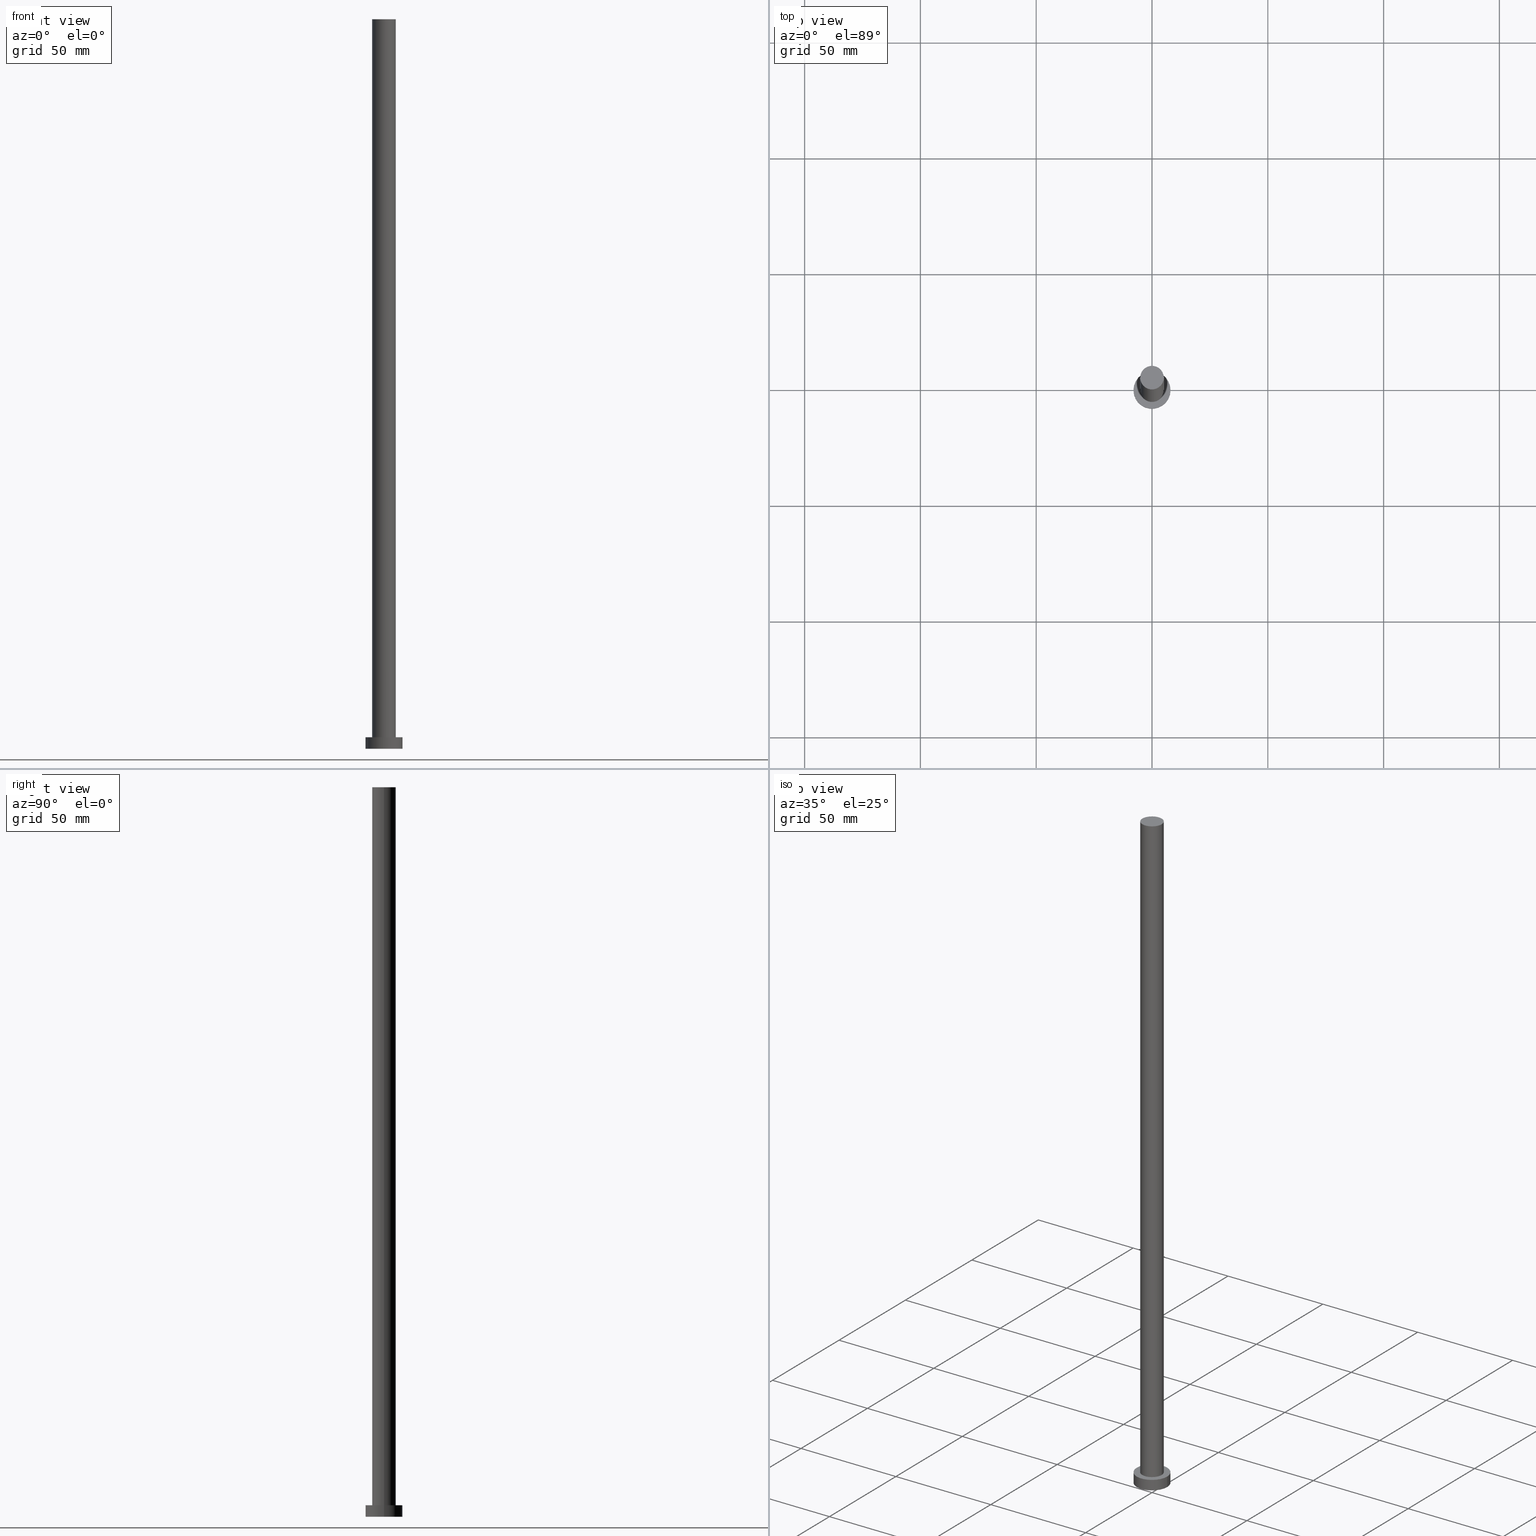
[diagram: canonical four-view strip — front | top / right | iso, engineering-drawing reading convention]
A machine part, canonical four-view strip (front | top / right | iso — engineering-drawing reading convention). The complete STEP part file that produces these views, byte-faithful:
ISO-10303-21;
HEADER;
FILE_DESCRIPTION (( 'STEP AP203' ),
    '1' );
FILE_NAME ('0a25.STEP',
    '2023-02-13T09:56:45',
    ( '' ),
    ( '' ),
    'SwSTEP 2.0',
    'SolidWorks 2019',
    '' );
FILE_SCHEMA (( 'CONFIG_CONTROL_DESIGN' ));
ENDSEC;

DATA;
#1 = APPROVAL_PERSON_ORGANIZATION ( #43, #59, #200 ) ;
#2 = PERSON_AND_ORGANIZATION_ROLE ( 'design_owner' ) ;
#3 = DATE_AND_TIME ( #164, #114 ) ;
#4 = ORIENTED_EDGE ( 'NONE', *, *, #72, .T. ) ;
#5 = ORIENTED_EDGE ( 'NONE', *, *, #136, .T. ) ;
#6 = EDGE_LOOP ( 'NONE', ( #186, #242, #219, #5 ) ) ;
#7 = CARTESIAN_POINT ( 'NONE',  ( -8.000000000000000000, 0.000000000000000000, 0.000000000000000000 ) ) ;
#8 = CC_DESIGN_DATE_AND_TIME_ASSIGNMENT ( #3, #85, ( #217 ) ) ;
#9 = FACE_OUTER_BOUND ( 'NONE', #202, .T. ) ;
#10 = CYLINDRICAL_SURFACE ( 'NONE', #78, 5.100000000000001421 ) ;
#11 = ORGANIZATION ( 'NEUR�EN�', 'NEUR�EN�', '' ) ;
#12 = AXIS2_PLACEMENT_3D ( 'NONE', #70, #55, #76 ) ;
#13 = EDGE_CURVE ( 'NONE', #204, #30, #147, .T. ) ;
#14 = LINE ( 'NONE', #251, #169 ) ;
#15 = DIRECTION ( 'NONE',  ( -0.000000000000000000, -0.000000000000000000, -1.000000000000000000 ) ) ;
#16 = CARTESIAN_POINT ( 'NONE',  ( -5.100000000000001421, 0.000000000000000000, 315.0000000000000000 ) ) ;
#17 = AXIS2_PLACEMENT_3D ( 'NONE', #19, #198, #44 ) ;
#18 = COORDINATED_UNIVERSAL_TIME_OFFSET ( 1, 0, .AHEAD. ) ;
#19 = CARTESIAN_POINT ( 'NONE',  ( 0.000000000000000000, 0.000000000000000000, 5.000000000000000000 ) ) ;
#20 = CARTESIAN_POINT ( 'NONE',  ( 5.100000000000001421, 6.245698675651502811E-16, 315.0000000000000000 ) ) ;
#21 = LOCAL_TIME ( 10, 56, 45.00000000000000000, #41 ) ;
#22 = FACE_OUTER_BOUND ( 'NONE', #6, .T. ) ;
#23 = EDGE_CURVE ( 'NONE', #218, #132, #252, .T. ) ;
#24 = ORIENTED_EDGE ( 'NONE', *, *, #23, .T. ) ;
#25 = CALENDAR_DATE ( 2023, 13, 2 ) ;
#26 = DIRECTION ( 'NONE',  ( -0.000000000000000000, -0.000000000000000000, -1.000000000000000000 ) ) ;
#27 = EDGE_CURVE ( 'NONE', #132, #162, #14, .T. ) ;
#28 = ORIENTED_EDGE ( 'NONE', *, *, #131, .F. ) ;
#29 = CIRCLE ( 'NONE', #170, 5.100000000000001421 ) ;
#30 = VERTEX_POINT ( 'NONE', #173 ) ;
#31 = CARTESIAN_POINT ( 'NONE',  ( 0.000000000000000000, 0.000000000000000000, 315.0000000000000000 ) ) ;
#32 = ADVANCED_FACE ( 'NONE', ( #9 ), #210, .T. ) ;
#33 = DIRECTION ( 'NONE',  ( 1.000000000000000000, 0.000000000000000000, 0.000000000000000000 ) ) ;
#34 = DIRECTION ( 'NONE',  ( 1.000000000000000000, 0.000000000000000000, 0.000000000000000000 ) ) ;
#35 = CC_DESIGN_PERSON_AND_ORGANIZATION_ASSIGNMENT ( #160, #233, ( #189 ) ) ;
#36 = DIRECTION ( 'NONE',  ( -0.000000000000000000, -0.000000000000000000, -1.000000000000000000 ) ) ;
#37 = AXIS2_PLACEMENT_3D ( 'NONE', #54, #101, #172 ) ;
#38 = VECTOR ( 'NONE', #208, 1000.000000000000000 ) ;
#39 = CARTESIAN_POINT ( 'NONE',  ( 0.000000000000000000, 0.000000000000000000, 5.000000000000000000 ) ) ;
#40 = DIRECTION ( 'NONE',  ( -1.000000000000000000, 0.000000000000000000, 0.000000000000000000 ) ) ;
#41 = COORDINATED_UNIVERSAL_TIME_OFFSET ( 1, 0, .AHEAD. ) ;
#42 = EDGE_CURVE ( 'NONE', #162, #206, #67, .T. ) ;
#43 = PERSON_AND_ORGANIZATION ( #236, #11 ) ;
#44 = DIRECTION ( 'NONE',  ( 1.000000000000000000, 0.000000000000000000, -0.000000000000000000 ) ) ;
#45 = AXIS2_PLACEMENT_3D ( 'NONE', #212, #255, #40 ) ;
#46 = SECURITY_CLASSIFICATION_LEVEL ( 'unclassified' ) ;
#47 = ORIENTED_EDGE ( 'NONE', *, *, #42, .F. ) ;
#48 = ORIENTED_EDGE ( 'NONE', *, *, #108, .F. ) ;
#49 = EDGE_CURVE ( 'NONE', #132, #218, #134, .T. ) ;
#50 = ORIENTED_EDGE ( 'NONE', *, *, #177, .T. ) ;
#51 = DIRECTION ( 'NONE',  ( -1.000000000000000000, 0.000000000000000000, 0.000000000000000000 ) ) ;
#52 = FACE_OUTER_BOUND ( 'NONE', #127, .T. ) ;
#53 = AXIS2_PLACEMENT_3D ( 'NONE', #73, #209, #34 ) ;
#54 = CARTESIAN_POINT ( 'NONE',  ( 0.000000000000000000, 0.000000000000000000, 5.000000000000000000 ) ) ;
#55 = DIRECTION ( 'NONE',  ( 0.000000000000000000, 0.000000000000000000, 1.000000000000000000 ) ) ;
#56 = CARTESIAN_POINT ( 'NONE',  ( -8.000000000000000000, 0.000000000000000000, 5.000000000000000000 ) ) ;
#57 =( GEOMETRIC_REPRESENTATION_CONTEXT ( 3 ) GLOBAL_UNCERTAINTY_ASSIGNED_CONTEXT ( ( #191 ) ) GLOBAL_UNIT_ASSIGNED_CONTEXT ( ( #58, #106, #216 ) ) REPRESENTATION_CONTEXT ( 'NONE', 'WORKASPACE' ) );
#58 =( LENGTH_UNIT ( ) NAMED_UNIT ( * ) SI_UNIT ( .MILLI., .METRE. ) );
#59 = APPROVAL ( #123, 'NEUR�EN�' ) ;
#60 = APPROVAL_DATE_TIME ( #253, #105 ) ;
#61 = APPLICATION_PROTOCOL_DEFINITION ( 'international standard', 'config_control_design', 1994, #165 ) ;
#62 = APPROVAL_DATE_TIME ( #232, #59 ) ;
#63 = APPROVAL_ROLE ( '' ) ;
#64 = LOCAL_TIME ( 10, 56, 45.00000000000000000, #18 ) ;
#65 = EDGE_LOOP ( 'NONE', ( #68, #205 ) ) ;
#66 = ORIENTED_EDGE ( 'NONE', *, *, #27, .F. ) ;
#67 = CIRCLE ( 'NONE', #53, 8.000000000000000000 ) ;
#68 = ORIENTED_EDGE ( 'NONE', *, *, #136, .F. ) ;
#69 = CC_DESIGN_PERSON_AND_ORGANIZATION_ASSIGNMENT ( #111, #129, ( #217 ) ) ;
#70 = CARTESIAN_POINT ( 'NONE',  ( 0.000000000000000000, 0.000000000000000000, 5.000000000000000000 ) ) ;
#71 = CARTESIAN_POINT ( 'NONE',  ( 0.000000000000000000, 0.000000000000000000, 5.000000000000000000 ) ) ;
#72 = EDGE_CURVE ( 'NONE', #239, #204, #195, .T. ) ;
#73 = CARTESIAN_POINT ( 'NONE',  ( 0.000000000000000000, 0.000000000000000000, 0.000000000000000000 ) ) ;
#74 = AXIS2_PLACEMENT_3D ( 'NONE', #98, #245, #246 ) ;
#75 = CARTESIAN_POINT ( 'NONE',  ( -5.100000000000001421, 0.000000000000000000, 5.000000000000000000 ) ) ;
#76 = DIRECTION ( 'NONE',  ( 1.000000000000000000, 0.000000000000000000, 0.000000000000000000 ) ) ;
#77 = AXIS2_PLACEMENT_3D ( 'NONE', #192, #97, #207 ) ;
#78 = AXIS2_PLACEMENT_3D ( 'NONE', #211, #15, #223 ) ;
#79 = ADVANCED_FACE ( 'NONE', ( #167 ), #154, .T. ) ;
#80 = DIRECTION ( 'NONE',  ( 0.000000000000000000, 0.000000000000000000, 1.000000000000000000 ) ) ;
#81 = DATE_TIME_ROLE ( 'creation_date' ) ;
#82 = CALENDAR_DATE ( 2023, 13, 2 ) ;
#83 = LOCAL_TIME ( 10, 56, 45.00000000000000000, #185 ) ;
#84 = PERSON_AND_ORGANIZATION ( #236, #11 ) ;
#85 = DATE_TIME_ROLE ( 'classification_date' ) ;
#86 = APPROVAL_DATE_TIME ( #182, #171 ) ;
#87 = ORIENTED_EDGE ( 'NONE', *, *, #49, .T. ) ;
#88 = COORDINATED_UNIVERSAL_TIME_OFFSET ( 1, 0, .AHEAD. ) ;
#89 = PRODUCT_DEFINITION_SHAPE ( 'NONE', 'NONE',  #122 ) ;
#90 = ORIENTED_EDGE ( 'NONE', *, *, #131, .T. ) ;
#91 = SHAPE_DEFINITION_REPRESENTATION ( #89, #96 ) ;
#92 = ORIENTED_EDGE ( 'NONE', *, *, #100, .F. ) ;
#93 = ORIENTED_EDGE ( 'NONE', *, *, #49, .F. ) ;
#94 = EDGE_CURVE ( 'NONE', #204, #239, #141, .T. ) ;
#95 = AXIS2_PLACEMENT_3D ( 'NONE', #31, #151, #222 ) ;
#96 = ADVANCED_BREP_SHAPE_REPRESENTATION ( '0a25', ( #103, #184 ), #57 ) ;
#97 = DIRECTION ( 'NONE',  ( 0.000000000000000000, 0.000000000000000000, 1.000000000000000000 ) ) ;
#98 = CARTESIAN_POINT ( 'NONE',  ( 0.000000000000000000, 0.000000000000000000, 0.000000000000000000 ) ) ;
#99 = APPLICATION_CONTEXT ( 'configuration controlled 3d designs of mechanical parts and assemblies' ) ;
#100 = EDGE_CURVE ( 'NONE', #218, #206, #133, .T. ) ;
#101 = DIRECTION ( 'NONE',  ( -0.000000000000000000, -0.000000000000000000, -1.000000000000000000 ) ) ;
#102 = DIRECTION ( 'NONE',  ( -0.000000000000000000, -0.000000000000000000, -1.000000000000000000 ) ) ;
#103 = MANIFOLD_SOLID_BREP ( 'P�idat vysunut�m3', #231 ) ;
#104 = DIRECTION ( 'NONE',  ( 1.000000000000000000, 0.000000000000000000, 0.000000000000000000 ) ) ;
#105 = APPROVAL ( #214, 'NEUR�EN�' ) ;
#106 =( NAMED_UNIT ( * ) PLANE_ANGLE_UNIT ( ) SI_UNIT ( $, .RADIAN. ) );
#107 = EDGE_LOOP ( 'NONE', ( #113, #187, #90, #66 ) ) ;
#108 = EDGE_CURVE ( 'NONE', #239, #150, #115, .T. ) ;
#109 = ORIENTED_EDGE ( 'NONE', *, *, #94, .T. ) ;
#110 = CIRCLE ( 'NONE', #126, 5.100000000000001421 ) ;
#111 = PERSON_AND_ORGANIZATION ( #236, #11 ) ;
#112 = ORIENTED_EDGE ( 'NONE', *, *, #27, .T. ) ;
#113 = ORIENTED_EDGE ( 'NONE', *, *, #23, .F. ) ;
#114 = LOCAL_TIME ( 10, 56, 45.00000000000000000, #88 ) ;
#115 = LINE ( 'NONE', #120, #181 ) ;
#116 = FACE_OUTER_BOUND ( 'NONE', #107, .T. ) ;
#117 = CC_DESIGN_PERSON_AND_ORGANIZATION_ASSIGNMENT ( #84, #145, ( #189 ) ) ;
#118 = CARTESIAN_POINT ( 'NONE',  ( 0.000000000000000000, 0.000000000000000000, 0.000000000000000000 ) ) ;
#119 = CARTESIAN_POINT ( 'NONE',  ( 0.000000000000000000, 0.000000000000000000, 315.0000000000000000 ) ) ;
#120 = CARTESIAN_POINT ( 'NONE',  ( -5.100000000000001421, 0.000000000000000000, 315.0000000000000000 ) ) ;
#121 = CARTESIAN_POINT ( 'NONE',  ( 8.000000000000000000, 9.797174393178825657E-16, 0.000000000000000000 ) ) ;
#122 = PRODUCT_DEFINITION ( 'NEZN�M�', '', #189, #220 ) ;
#123 = APPROVAL_STATUS ( 'not_yet_approved' ) ;
#124 = DATE_AND_TIME ( #254, #21 ) ;
#125 = APPLICATION_PROTOCOL_DEFINITION ( 'international standard', 'config_control_design', 1994, #99 ) ;
#126 = AXIS2_PLACEMENT_3D ( 'NONE', #155, #193, #140 ) ;
#127 = EDGE_LOOP ( 'NONE', ( #130, #163, #50, #48 ) ) ;
#128 = EDGE_LOOP ( 'NONE', ( #87, #24 ) ) ;
#129 = PERSON_AND_ORGANIZATION_ROLE ( 'classification_officer' ) ;
#130 = ORIENTED_EDGE ( 'NONE', *, *, #94, .F. ) ;
#131 = EDGE_CURVE ( 'NONE', #206, #162, #227, .T. ) ;
#132 = VERTEX_POINT ( 'NONE', #56 ) ;
#133 = LINE ( 'NONE', #156, #38 ) ;
#134 = CIRCLE ( 'NONE', #12, 8.000000000000000000 ) ;
#135 = DIRECTION ( 'NONE',  ( 0.000000000000000000, 0.000000000000000000, 1.000000000000000000 ) ) ;
#136 = EDGE_CURVE ( 'NONE', #150, #30, #110, .T. ) ;
#137 = DIRECTION ( 'NONE',  ( 0.000000000000000000, 0.000000000000000000, 1.000000000000000000 ) ) ;
#138 = FACE_OUTER_BOUND ( 'NONE', #128, .T. ) ;
#139 = ADVANCED_FACE ( 'NONE', ( #190 ), #153, .F. ) ;
#140 = DIRECTION ( 'NONE',  ( 1.000000000000000000, 0.000000000000000000, 0.000000000000000000 ) ) ;
#141 = CIRCLE ( 'NONE', #95, 5.100000000000001421 ) ;
#142 = CALENDAR_DATE ( 2023, 13, 2 ) ;
#143 = PERSON_AND_ORGANIZATION_ROLE ( 'creator' ) ;
#144 = PLANE ( 'NONE',  #17 ) ;
#145 = PERSON_AND_ORGANIZATION_ROLE ( 'creator' ) ;
#146 = CYLINDRICAL_SURFACE ( 'NONE', #45, 5.100000000000001421 ) ;
#147 = LINE ( 'NONE', #203, #238 ) ;
#148 = ADVANCED_FACE ( 'NONE', ( #52 ), #10, .T. ) ;
#149 = AXIS2_PLACEMENT_3D ( 'NONE', #39, #196, #51 ) ;
#150 = VERTEX_POINT ( 'NONE', #75 ) ;
#151 = DIRECTION ( 'NONE',  ( 0.000000000000000000, 0.000000000000000000, 1.000000000000000000 ) ) ;
#152 = CC_DESIGN_DATE_AND_TIME_ASSIGNMENT ( #124, #81, ( #122 ) ) ;
#153 = PLANE ( 'NONE',  #74 ) ;
#154 = CYLINDRICAL_SURFACE ( 'NONE', #149, 8.000000000000000000 ) ;
#155 = CARTESIAN_POINT ( 'NONE',  ( 0.000000000000000000, 0.000000000000000000, 5.000000000000000000 ) ) ;
#156 = CARTESIAN_POINT ( 'NONE',  ( 8.000000000000000000, 9.797174393178825657E-16, 5.000000000000000000 ) ) ;
#157 = AXIS2_PLACEMENT_3D ( 'NONE', #118, #226, #168 ) ;
#158 = MECHANICAL_CONTEXT ( 'NONE', #99, 'mechanical' ) ;
#159 = CC_DESIGN_APPROVAL ( #59, ( #189 ) ) ;
#160 = PERSON_AND_ORGANIZATION ( #236, #11 ) ;
#161 = PERSON_AND_ORGANIZATION ( #236, #11 ) ;
#162 = VERTEX_POINT ( 'NONE', #7 ) ;
#163 = ORIENTED_EDGE ( 'NONE', *, *, #13, .T. ) ;
#164 = CALENDAR_DATE ( 2023, 13, 2 ) ;
#165 = APPLICATION_CONTEXT ( 'configuration controlled 3d designs of mechanical parts and assemblies' ) ;
#166 = CC_DESIGN_PERSON_AND_ORGANIZATION_ASSIGNMENT ( #213, #2, ( #234 ) ) ;
#167 = FACE_OUTER_BOUND ( 'NONE', #241, .T. ) ;
#168 = DIRECTION ( 'NONE',  ( 1.000000000000000000, 0.000000000000000000, 0.000000000000000000 ) ) ;
#169 = VECTOR ( 'NONE', #36, 1000.000000000000000 ) ;
#170 = AXIS2_PLACEMENT_3D ( 'NONE', #71, #135, #33 ) ;
#171 = APPROVAL ( #235, 'NEUR�EN�' ) ;
#172 = DIRECTION ( 'NONE',  ( -1.000000000000000000, 0.000000000000000000, 0.000000000000000000 ) ) ;
#173 = CARTESIAN_POINT ( 'NONE',  ( 5.100000000000001421, 6.245698675651502811E-16, 5.000000000000000000 ) ) ;
#174 = PERSON_AND_ORGANIZATION ( #236, #11 ) ;
#175 = AXIS2_PLACEMENT_3D ( 'NONE', #224, #137, #225 ) ;
#176 = DIRECTION ( 'NONE',  ( 1.000000000000000000, 0.000000000000000000, 0.000000000000000000 ) ) ;
#177 = EDGE_CURVE ( 'NONE', #30, #150, #29, .T. ) ;
#178 = PERSON_AND_ORGANIZATION ( #236, #11 ) ;
#179 = ADVANCED_FACE ( 'NONE', ( #116 ), #248, .T. ) ;
#180 = CC_DESIGN_APPROVAL ( #105, ( #122 ) ) ;
#181 = VECTOR ( 'NONE', #102, 1000.000000000000000 ) ;
#182 = DATE_AND_TIME ( #25, #83 ) ;
#183 = EDGE_LOOP ( 'NONE', ( #47, #28 ) ) ;
#184 = AXIS2_PLACEMENT_3D ( 'NONE', #228, #80, #176 ) ;
#185 = COORDINATED_UNIVERSAL_TIME_OFFSET ( 1, 0, .AHEAD. ) ;
#186 = ORIENTED_EDGE ( 'NONE', *, *, #13, .F. ) ;
#187 = ORIENTED_EDGE ( 'NONE', *, *, #100, .T. ) ;
#188 = ADVANCED_FACE ( 'NONE', ( #250, #138 ), #144, .T. ) ;
#189 = PRODUCT_DEFINITION_FORMATION_WITH_SPECIFIED_SOURCE ( 'LIBOVOLN�', '', #234, .NOT_KNOWN. ) ;
#190 = FACE_OUTER_BOUND ( 'NONE', #183, .T. ) ;
#191 = UNCERTAINTY_MEASURE_WITH_UNIT (LENGTH_MEASURE( 1.000000000000000082E-05 ), #58, 'distance_accuracy_value', 'NONE');
#192 = CARTESIAN_POINT ( 'NONE',  ( 0.000000000000000000, 0.000000000000000000, 5.000000000000000000 ) ) ;
#193 = DIRECTION ( 'NONE',  ( 0.000000000000000000, 0.000000000000000000, 1.000000000000000000 ) ) ;
#194 = APPROVAL_PERSON_ORGANIZATION ( #161, #171, #63 ) ;
#195 = CIRCLE ( 'NONE', #244, 5.100000000000001421 ) ;
#196 = DIRECTION ( 'NONE',  ( -0.000000000000000000, -0.000000000000000000, -1.000000000000000000 ) ) ;
#197 = DIRECTION ( 'NONE',  ( 0.000000000000000000, 0.000000000000000000, 1.000000000000000000 ) ) ;
#198 = DIRECTION ( 'NONE',  ( 0.000000000000000000, 0.000000000000000000, 1.000000000000000000 ) ) ;
#199 = CC_DESIGN_PERSON_AND_ORGANIZATION_ASSIGNMENT ( #178, #143, ( #122 ) ) ;
#200 = APPROVAL_ROLE ( '' ) ;
#201 = COORDINATED_UNIVERSAL_TIME_OFFSET ( 1, 0, .AHEAD. ) ;
#202 = EDGE_LOOP ( 'NONE', ( #4, #109 ) ) ;
#203 = CARTESIAN_POINT ( 'NONE',  ( 5.100000000000001421, 6.245698675651502811E-16, 315.0000000000000000 ) ) ;
#204 = VERTEX_POINT ( 'NONE', #20 ) ;
#205 = ORIENTED_EDGE ( 'NONE', *, *, #177, .F. ) ;
#206 = VERTEX_POINT ( 'NONE', #121 ) ;
#207 = DIRECTION ( 'NONE',  ( 1.000000000000000000, 0.000000000000000000, 0.000000000000000000 ) ) ;
#208 = DIRECTION ( 'NONE',  ( -0.000000000000000000, -0.000000000000000000, -1.000000000000000000 ) ) ;
#209 = DIRECTION ( 'NONE',  ( 0.000000000000000000, 0.000000000000000000, 1.000000000000000000 ) ) ;
#210 = PLANE ( 'NONE',  #175 ) ;
#211 = CARTESIAN_POINT ( 'NONE',  ( 0.000000000000000000, 0.000000000000000000, 315.0000000000000000 ) ) ;
#212 = CARTESIAN_POINT ( 'NONE',  ( 0.000000000000000000, 0.000000000000000000, 315.0000000000000000 ) ) ;
#213 = PERSON_AND_ORGANIZATION ( #236, #11 ) ;
#214 = APPROVAL_STATUS ( 'not_yet_approved' ) ;
#215 = APPROVAL_PERSON_ORGANIZATION ( #174, #105, #229 ) ;
#216 =( NAMED_UNIT ( * ) SI_UNIT ( $, .STERADIAN. ) SOLID_ANGLE_UNIT ( ) );
#217 = SECURITY_CLASSIFICATION ( '', '', #46 ) ;
#218 = VERTEX_POINT ( 'NONE', #230 ) ;
#219 = ORIENTED_EDGE ( 'NONE', *, *, #108, .T. ) ;
#220 = DESIGN_CONTEXT ( 'detailed design', #165, 'design' ) ;
#221 = ORIENTED_EDGE ( 'NONE', *, *, #42, .T. ) ;
#222 = DIRECTION ( 'NONE',  ( 1.000000000000000000, 0.000000000000000000, 0.000000000000000000 ) ) ;
#223 = DIRECTION ( 'NONE',  ( -1.000000000000000000, 0.000000000000000000, 0.000000000000000000 ) ) ;
#224 = CARTESIAN_POINT ( 'NONE',  ( 0.000000000000000000, 0.000000000000000000, 315.0000000000000000 ) ) ;
#225 = DIRECTION ( 'NONE',  ( 1.000000000000000000, 0.000000000000000000, -0.000000000000000000 ) ) ;
#226 = DIRECTION ( 'NONE',  ( 0.000000000000000000, 0.000000000000000000, 1.000000000000000000 ) ) ;
#227 = CIRCLE ( 'NONE', #157, 8.000000000000000000 ) ;
#228 = CARTESIAN_POINT ( 'NONE',  ( 0.000000000000000000, 0.000000000000000000, 0.000000000000000000 ) ) ;
#229 = APPROVAL_ROLE ( '' ) ;
#230 = CARTESIAN_POINT ( 'NONE',  ( 8.000000000000000000, 9.797174393178825657E-16, 5.000000000000000000 ) ) ;
#231 = CLOSED_SHELL ( 'NONE', ( #148, #179, #79, #188, #139, #237, #32 ) ) ;
#232 = DATE_AND_TIME ( #82, #249 ) ;
#233 = PERSON_AND_ORGANIZATION_ROLE ( 'design_supplier' ) ;
#234 = PRODUCT ( '0a25', '0a25', '', ( #158 ) ) ;
#235 = APPROVAL_STATUS ( 'not_yet_approved' ) ;
#236 = PERSON ( 'NEUR�EN�', 'NEUR�EN�', 'NEUR�EN�', ('NEUR�EN�'), ('NEUR�EN�'), ('NEUR�EN�') ) ;
#237 = ADVANCED_FACE ( 'NONE', ( #22 ), #146, .T. ) ;
#238 = VECTOR ( 'NONE', #26, 1000.000000000000000 ) ;
#239 = VERTEX_POINT ( 'NONE', #16 ) ;
#240 = CC_DESIGN_APPROVAL ( #171, ( #217 ) ) ;
#241 = EDGE_LOOP ( 'NONE', ( #92, #93, #112, #221 ) ) ;
#242 = ORIENTED_EDGE ( 'NONE', *, *, #72, .F. ) ;
#243 = CC_DESIGN_SECURITY_CLASSIFICATION ( #217, ( #189 ) ) ;
#244 = AXIS2_PLACEMENT_3D ( 'NONE', #119, #197, #104 ) ;
#245 = DIRECTION ( 'NONE',  ( 0.000000000000000000, 0.000000000000000000, 1.000000000000000000 ) ) ;
#246 = DIRECTION ( 'NONE',  ( 1.000000000000000000, 0.000000000000000000, -0.000000000000000000 ) ) ;
#247 = PRODUCT_RELATED_PRODUCT_CATEGORY ( 'detail', '', ( #234 ) ) ;
#248 = CYLINDRICAL_SURFACE ( 'NONE', #37, 8.000000000000000000 ) ;
#249 = LOCAL_TIME ( 10, 56, 45.00000000000000000, #201 ) ;
#250 = FACE_BOUND ( 'NONE', #65, .T. ) ;
#251 = CARTESIAN_POINT ( 'NONE',  ( -8.000000000000000000, 0.000000000000000000, 5.000000000000000000 ) ) ;
#252 = CIRCLE ( 'NONE', #77, 8.000000000000000000 ) ;
#253 = DATE_AND_TIME ( #142, #64 ) ;
#254 = CALENDAR_DATE ( 2023, 13, 2 ) ;
#255 = DIRECTION ( 'NONE',  ( -0.000000000000000000, -0.000000000000000000, -1.000000000000000000 ) ) ;
ENDSEC;
END-ISO-10303-21;
